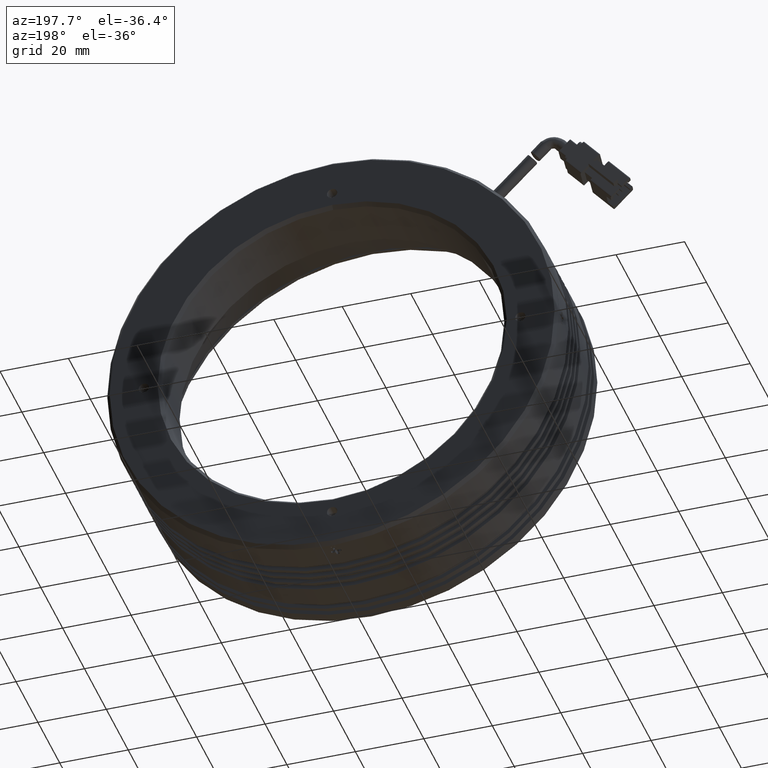
[diagram: clean part render]
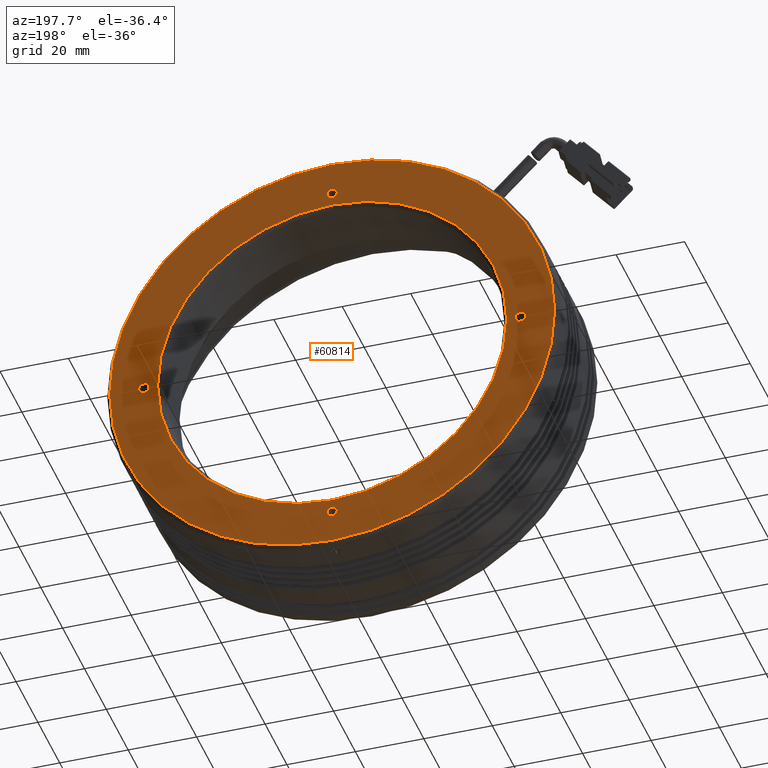
[diagram: same view with one face highlighted and labeled with its STEP entity id]
A machine part, auxiliary view. The second image highlights one B-rep face of the part: STEP entity #60814.
In plain terms, the highlighted planar face has unit normal (0, -1, 0).
Its self-contained STEP definition (entity closure, byte-faithful):
#367 = CARTESIAN_POINT ( 'NONE',  ( -22.28931969497969200, 31.14734950584006900, -55.00000000000000000 ) ) ;
#700 = EDGE_CURVE ( 'NONE', #70907, #4804, #6359, .T. ) ;
#1111 = EDGE_CURVE ( 'NONE', #68321, #70865, #33091, .T. ) ;
#2761 = PLANE ( 'NONE',  #18580 ) ;
#2976 = DIRECTION ( 'NONE',  ( 0.0000000000000000000, -0.0000000000000000000, -1.000000000000000000 ) ) ;
#3014 = DIRECTION ( 'NONE',  ( -0.0000000000000000000, 1.000000000000000000, -0.0000000000000000000 ) ) ;
#4064 = ORIENTED_EDGE ( 'NONE', *, *, #28155, .F. ) ;
#4804 = VERTEX_POINT ( 'NONE', #5619 ) ;
#5113 = AXIS2_PLACEMENT_3D ( 'NONE', #50111, #16906, #55675 ) ;
#5619 = CARTESIAN_POINT ( 'NONE',  ( -22.28931969498006900, 31.14734950584006900, -51.00000000000003600 ) ) ;
#5663 = CARTESIAN_POINT ( 'NONE',  ( -22.28931969498007200, 31.14734950584006900, 56.50000000000000000 ) ) ;
#5896 = DIRECTION ( 'NONE',  ( 0.0000000000000000000, 0.0000000000000000000, 1.000000000000000000 ) ) ;
#6359 = CIRCLE ( 'NONE', #40679, 51.00000000000003600 ) ;
#8142 = EDGE_LOOP ( 'NONE', ( #46098, #47504 ) ) ;
#8725 = EDGE_LOOP ( 'NONE', ( #49356, #28984 ) ) ;
#8936 = CIRCLE ( 'NONE', #26342, 64.99999999999994300 ) ;
#11007 = EDGE_CURVE ( 'NONE', #4804, #70907, #14917, .T. ) ;
#11705 = FACE_BOUND ( 'NONE', #51944, .T. ) ;
#12808 = EDGE_CURVE ( 'NONE', #65649, #69945, #8936, .T. ) ;
#14020 = CARTESIAN_POINT ( 'NONE',  ( -22.28931969498007600, 31.14734950584006900, 0.0000000000000000000 ) ) ;
#14023 = CARTESIAN_POINT ( 'NONE',  ( -22.28931969498007200, 31.14734950584006900, 53.50000000000000000 ) ) ;
#14296 = CARTESIAN_POINT ( 'NONE',  ( -22.28931969498007600, 31.14734950584006900, 0.0000000000000000000 ) ) ;
#14797 = CIRCLE ( 'NONE', #50823, 1.500000000000001300 ) ;
#14917 = CIRCLE ( 'NONE', #17263, 51.00000000000003600 ) ;
#15945 = EDGE_CURVE ( 'NONE', #46054, #47142, #70737, .T. ) ;
#16544 = EDGE_LOOP ( 'NONE', ( #66012, #39897 ) ) ;
#16857 = ORIENTED_EDGE ( 'NONE', *, *, #1111, .F. ) ;
#16906 = DIRECTION ( 'NONE',  ( -0.0000000000000000000, 1.000000000000000000, -0.0000000000000000000 ) ) ;
#17152 = CARTESIAN_POINT ( 'NONE',  ( -77.28931969498006500, 31.14734950584006900, -1.901834123559354000E-013 ) ) ;
#17233 = AXIS2_PLACEMENT_3D ( 'NONE', #14020, #52795, #19566 ) ;
#17263 = AXIS2_PLACEMENT_3D ( 'NONE', #14296, #53051, #19851 ) ;
#18109 = AXIS2_PLACEMENT_3D ( 'NONE', #22071, #60815, #27690 ) ;
#18216 = CARTESIAN_POINT ( 'NONE',  ( -87.28931969498002300, 31.14734950584007600, 8.021436534415161700E-015 ) ) ;
#18580 = AXIS2_PLACEMENT_3D ( 'NONE', #69325, #36182, #2976 ) ;
#19566 = DIRECTION ( 'NONE',  ( 1.000000000000000000, -1.067522139062651400E-016, 0.0000000000000000000 ) ) ;
#19851 = DIRECTION ( 'NONE',  ( 0.0000000000000000000, 0.0000000000000000000, 1.000000000000000000 ) ) ;
#20767 = CARTESIAN_POINT ( 'NONE',  ( 42.71068030501987100, 31.14734950584006200, 0.0000000000000000000 ) ) ;
#21988 = EDGE_CURVE ( 'NONE', #47142, #46054, #45152, .T. ) ;
#22068 = ORIENTED_EDGE ( 'NONE', *, *, #45231, .F. ) ;
#22071 = CARTESIAN_POINT ( 'NONE',  ( -77.28931969498006500, 31.14734950584006900, -1.901834123559354000E-013 ) ) ;
#22090 = DIRECTION ( 'NONE',  ( -1.051347561198064800E-016, -1.000000000000000000, 0.0000000000000000000 ) ) ;
#22678 = EDGE_CURVE ( 'NONE', #69945, #65649, #34521, .T. ) ;
#22736 = DIRECTION ( 'NONE',  ( -0.0000000000000000000, 1.000000000000000000, -0.0000000000000000000 ) ) ;
#23206 = DIRECTION ( 'NONE',  ( -0.0000000000000000000, 1.000000000000000000, -0.0000000000000000000 ) ) ;
#23413 = CIRCLE ( 'NONE', #5113, 1.500000000000001300 ) ;
#24047 = AXIS2_PLACEMENT_3D ( 'NONE', #17152, #22736, #39029 ) ;
#24090 = ORIENTED_EDGE ( 'NONE', *, *, #47715, .F. ) ;
#24875 = DIRECTION ( 'NONE',  ( -0.0000000000000000000, 1.000000000000000000, -0.0000000000000000000 ) ) ;
#25487 = CARTESIAN_POINT ( 'NONE',  ( -22.28931969498007600, 31.14734950584006900, 0.0000000000000000000 ) ) ;
#25496 = AXIS2_PLACEMENT_3D ( 'NONE', #29387, #68070, #34935 ) ;
#26342 = AXIS2_PLACEMENT_3D ( 'NONE', #55273, #22090, #60838 ) ;
#26454 = VERTEX_POINT ( 'NONE', #30303 ) ;
#26499 = FACE_BOUND ( 'NONE', #34991, .T. ) ;
#27690 = DIRECTION ( 'NONE',  ( 0.0000000000000000000, 0.0000000000000000000, 1.000000000000000000 ) ) ;
#28035 = CARTESIAN_POINT ( 'NONE',  ( -77.28931969498006500, 31.14734950584006900, -1.500000000000191400 ) ) ;
#28131 = DIRECTION ( 'NONE',  ( 0.0000000000000000000, 1.000000000000000000, 0.0000000000000000000 ) ) ;
#28155 = EDGE_CURVE ( 'NONE', #28678, #34301, #23413, .T. ) ;
#28678 = VERTEX_POINT ( 'NONE', #5663 ) ;
#28984 = ORIENTED_EDGE ( 'NONE', *, *, #54643, .F. ) ;
#29387 = CARTESIAN_POINT ( 'NONE',  ( 32.71068030501992800, 31.14734950584006900, 5.742463596286800200E-013 ) ) ;
#29640 = DIRECTION ( 'NONE',  ( 0.0000000000000000000, 0.0000000000000000000, 1.000000000000000000 ) ) ;
#30303 = CARTESIAN_POINT ( 'NONE',  ( 32.71068030501992800, 31.14734950584006900, 1.500000000000575500 ) ) ;
#32968 = AXIS2_PLACEMENT_3D ( 'NONE', #367, #39098, #5896 ) ;
#33091 = CIRCLE ( 'NONE', #24047, 1.500000000000001300 ) ;
#34301 = VERTEX_POINT ( 'NONE', #14023 ) ;
#34434 = CARTESIAN_POINT ( 'NONE',  ( -77.28931969498006500, 31.14734950584006900, 1.499999999999811300 ) ) ;
#34521 = CIRCLE ( 'NONE', #17233, 64.99999999999994300 ) ;
#34935 = DIRECTION ( 'NONE',  ( 0.0000000000000000000, 0.0000000000000000000, 1.000000000000000000 ) ) ;
#34991 = EDGE_LOOP ( 'NONE', ( #35784, #64566 ) ) ;
#35784 = ORIENTED_EDGE ( 'NONE', *, *, #700, .F. ) ;
#36182 = DIRECTION ( 'NONE',  ( 0.0000000000000000000, -1.000000000000000000, 0.0000000000000000000 ) ) ;
#36215 = CARTESIAN_POINT ( 'NONE',  ( -22.28931969498007200, 31.14734950584006900, 55.00000000000000000 ) ) ;
#39029 = DIRECTION ( 'NONE',  ( 0.0000000000000000000, 0.0000000000000000000, 1.000000000000000000 ) ) ;
#39098 = DIRECTION ( 'NONE',  ( -0.0000000000000000000, 1.000000000000000000, -0.0000000000000000000 ) ) ;
#39897 = ORIENTED_EDGE ( 'NONE', *, *, #21988, .F. ) ;
#40276 = VERTEX_POINT ( 'NONE', #43668 ) ;
#40679 = AXIS2_PLACEMENT_3D ( 'NONE', #25487, #28131, #29640 ) ;
#41196 = FACE_OUTER_BOUND ( 'NONE', #8142, .T. ) ;
#41756 = DIRECTION ( 'NONE',  ( 0.0000000000000000000, 0.0000000000000000000, 1.000000000000000000 ) ) ;
#43668 = CARTESIAN_POINT ( 'NONE',  ( 32.71068030501992800, 31.14734950584006900, -1.499999999999427100 ) ) ;
#45152 = CIRCLE ( 'NONE', #32968, 1.500000000000001300 ) ;
#45231 = EDGE_CURVE ( 'NONE', #34301, #28678, #14797, .T. ) ;
#45666 = CARTESIAN_POINT ( 'NONE',  ( -22.28931969498007600, 31.14734950584006900, 51.00000000000003600 ) ) ;
#46054 = VERTEX_POINT ( 'NONE', #58701 ) ;
#46098 = ORIENTED_EDGE ( 'NONE', *, *, #12808, .F. ) ;
#47142 = VERTEX_POINT ( 'NONE', #65082 ) ;
#47504 = ORIENTED_EDGE ( 'NONE', *, *, #22678, .F. ) ;
#47715 = EDGE_CURVE ( 'NONE', #70865, #68321, #69094, .T. ) ;
#49356 = ORIENTED_EDGE ( 'NONE', *, *, #63621, .F. ) ;
#50111 = CARTESIAN_POINT ( 'NONE',  ( -22.28931969498007200, 31.14734950584006900, 55.00000000000000000 ) ) ;
#50600 = CIRCLE ( 'NONE', #25496, 1.500000000000001300 ) ;
#50823 = AXIS2_PLACEMENT_3D ( 'NONE', #36215, #3014, #41756 ) ;
#51621 = FACE_BOUND ( 'NONE', #16544, .T. ) ;
#51944 = EDGE_LOOP ( 'NONE', ( #16857, #24090 ) ) ;
#52795 = DIRECTION ( 'NONE',  ( -1.051347561198064800E-016, -1.000000000000000000, 0.0000000000000000000 ) ) ;
#53051 = DIRECTION ( 'NONE',  ( 0.0000000000000000000, 1.000000000000000000, 0.0000000000000000000 ) ) ;
#54643 = EDGE_CURVE ( 'NONE', #40276, #26454, #50600, .T. ) ;
#55273 = CARTESIAN_POINT ( 'NONE',  ( -22.28931969498007600, 31.14734950584006900, 0.0000000000000000000 ) ) ;
#55675 = DIRECTION ( 'NONE',  ( 0.0000000000000000000, 0.0000000000000000000, 1.000000000000000000 ) ) ;
#56349 = AXIS2_PLACEMENT_3D ( 'NONE', #56381, #23206, #61927 ) ;
#56381 = CARTESIAN_POINT ( 'NONE',  ( -22.28931969497969200, 31.14734950584006900, -55.00000000000000000 ) ) ;
#58062 = EDGE_LOOP ( 'NONE', ( #4064, #22068 ) ) ;
#58086 = CARTESIAN_POINT ( 'NONE',  ( 32.71068030501992800, 31.14734950584006900, 5.742463596286800200E-013 ) ) ;
#58701 = CARTESIAN_POINT ( 'NONE',  ( -22.28931969497969200, 31.14734950584006900, -53.50000000000000000 ) ) ;
#60814 = ADVANCED_FACE ( 'NONE', ( #41196, #26499, #66365, #11705, #51621, #68893 ), #2761, .F. ) ;
#60815 = DIRECTION ( 'NONE',  ( -0.0000000000000000000, 1.000000000000000000, -0.0000000000000000000 ) ) ;
#60838 = DIRECTION ( 'NONE',  ( 1.000000000000000000, -1.067522139062651400E-016, 0.0000000000000000000 ) ) ;
#61927 = DIRECTION ( 'NONE',  ( 0.0000000000000000000, 0.0000000000000000000, 1.000000000000000000 ) ) ;
#63621 = EDGE_CURVE ( 'NONE', #26454, #40276, #69767, .T. ) ;
#63625 = DIRECTION ( 'NONE',  ( 0.0000000000000000000, 0.0000000000000000000, 1.000000000000000000 ) ) ;
#64566 = ORIENTED_EDGE ( 'NONE', *, *, #11007, .F. ) ;
#65082 = CARTESIAN_POINT ( 'NONE',  ( -22.28931969497969200, 31.14734950584006900, -56.50000000000000000 ) ) ;
#65649 = VERTEX_POINT ( 'NONE', #20767 ) ;
#66012 = ORIENTED_EDGE ( 'NONE', *, *, #15945, .F. ) ;
#66365 = FACE_BOUND ( 'NONE', #58062, .T. ) ;
#68070 = DIRECTION ( 'NONE',  ( -0.0000000000000000000, 1.000000000000000000, -0.0000000000000000000 ) ) ;
#68321 = VERTEX_POINT ( 'NONE', #34434 ) ;
#68547 = AXIS2_PLACEMENT_3D ( 'NONE', #58086, #24875, #63625 ) ;
#68893 = FACE_BOUND ( 'NONE', #8725, .T. ) ;
#69094 = CIRCLE ( 'NONE', #18109, 1.500000000000001300 ) ;
#69325 = CARTESIAN_POINT ( 'NONE',  ( -88.28931969498008000, 31.14734950584006900, 0.0000000000000000000 ) ) ;
#69767 = CIRCLE ( 'NONE', #68547, 1.500000000000001300 ) ;
#69945 = VERTEX_POINT ( 'NONE', #18216 ) ;
#70737 = CIRCLE ( 'NONE', #56349, 1.500000000000001300 ) ;
#70865 = VERTEX_POINT ( 'NONE', #28035 ) ;
#70907 = VERTEX_POINT ( 'NONE', #45666 ) ;